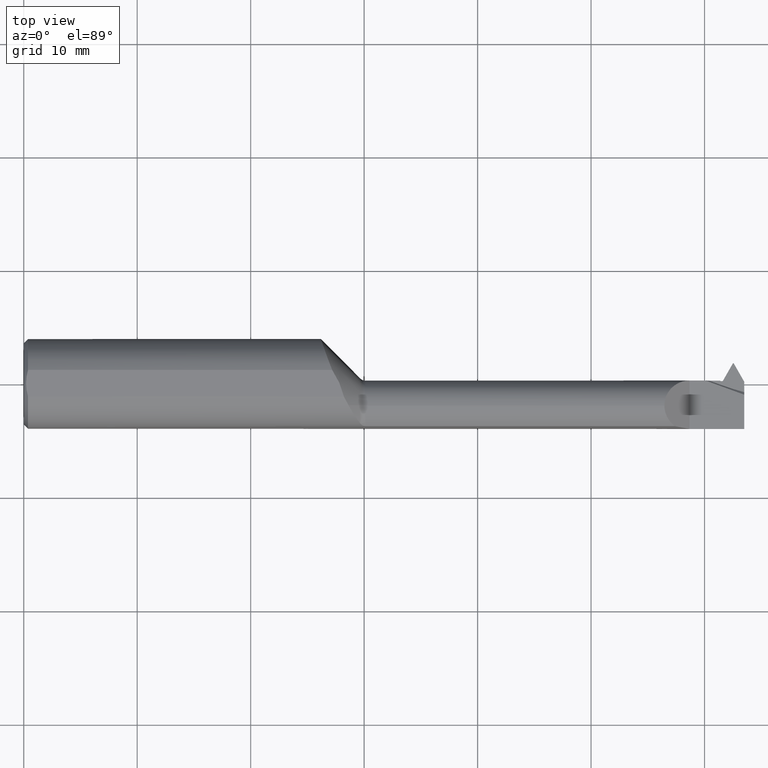
[diagram: clean part render]
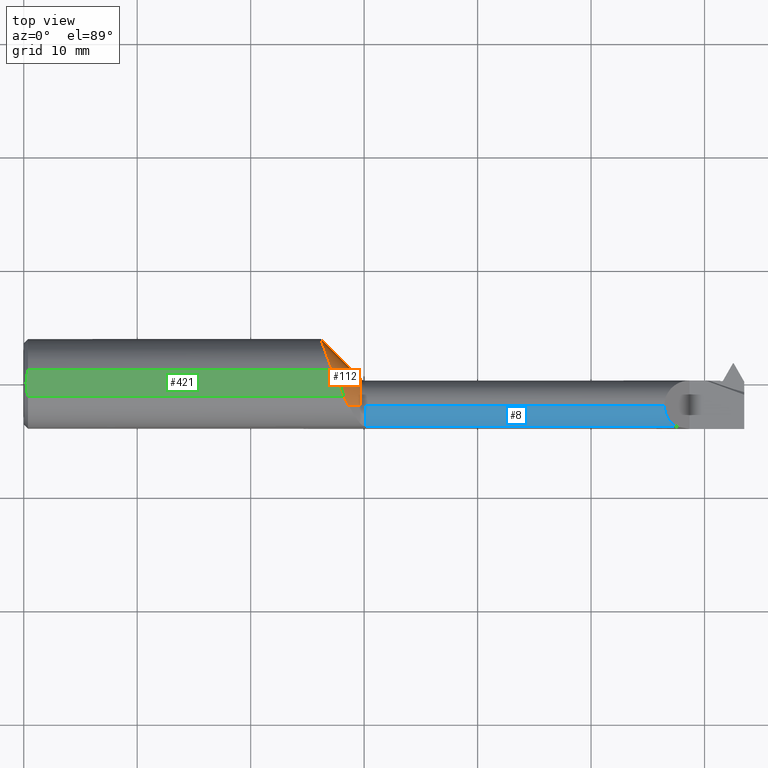
[diagram: same view with three faces highlighted in distinct colors, each labeled with its STEP entity id]
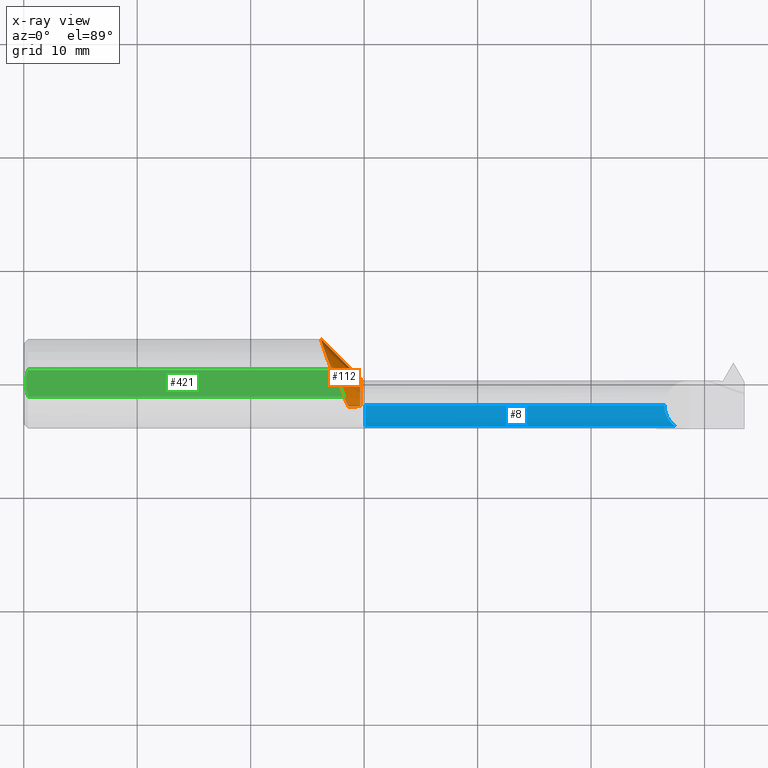
[diagram: x-ray of the same camera — body ghosted, the three highlighted faces saturated]
A machine part, top view with three faces highlighted in distinct colors.
The next image is the same camera in x-ray (body ghosted, the three faces saturated) — at least one of them is partly hidden behind the body in this view.
Their STEP definitions:

[orange] entity #112 — the highlighted conical surface has half-angle 45 deg.
#5 = CARTESIAN_POINT ( 'NONE',  ( 1.044222012668610589, 0.1163179709796762773, -0.1042486718442272170 ) ) ;
#27 = VECTOR ( 'NONE', #312, 39.37007874015748143 ) ;
#68 = ORIENTED_EDGE ( 'NONE', *, *, #353, .T. ) ;
#71 = CARTESIAN_POINT ( 'NONE',  ( 1.031141773156916353, 0.1550540061005035442, 0.02129797022049672445 ) ) ;
#76 = CARTESIAN_POINT ( 'NONE',  ( 1.116812169148769129, -0.05789496149929983237, -0.1453281471598949215 ) ) ;
#88 = CARTESIAN_POINT ( 'NONE',  ( 1.043525812468697689, 0.1182995851173736374, 0.1024596034648371373 ) ) ;
#112 = ADVANCED_FACE ( 'NONE', ( #621 ), #772, .T. ) ;
#124 = CARTESIAN_POINT ( 'NONE',  ( 1.126706199700792999, -0.07609999999999983444, 0.1362938002992066244 ) ) ;
#144 = EDGE_CURVE ( 'NONE', #180, #694, #423, .T. ) ;
#147 = EDGE_CURVE ( 'NONE', #806, #1041, #175, .T. ) ;
#148 = CARTESIAN_POINT ( 'NONE',  ( 1.046899741308043419, 0.1086669464458838996, -0.1122013845914639069 ) ) ;
#152 = CARTESIAN_POINT ( 'NONE',  ( 1.048311627111805588, 0.1046679885198928961, -0.1159372447474035089 ) ) ;
#154 = EDGE_CURVE ( 'NONE', #694, #806, #573, .T. ) ;
#158 = CARTESIAN_POINT ( 'NONE',  ( 1.067010607088304086, 0.05412176561188290769, -0.1467967206887914600 ) ) ;
#163 = CARTESIAN_POINT ( 'NONE',  ( 1.070144386278151671, 0.04622120725381387990, 0.1490999999999999270 ) ) ;
#169 = CARTESIAN_POINT ( 'NONE',  ( 1.075032927891207191, 0.03388377653998491529, -0.1527427000066419183 ) ) ;
#175 = B_SPLINE_CURVE_WITH_KNOTS ( 'NONE', 3,
 ( #556, #880, #76, #964, #656, #886, #901, #403, #169, #158, #565, #979, #975, #152, #148, #5, #322, #485, #650, #480, #475, #244, #800, #646, #71, #891, #570, #250, #396, #88, #496, #414, #812, #897, #735, #163 ),
 .UNSPECIFIED., .F., .F.,
 ( 4, 2, 2, 2, 2, 2, 2, 2, 2, 2, 2, 2, 2, 2, 2, 2, 2, 4 ),
 ( 0.003110930994557954254, 0.003973681353903177338, 0.004836431713248399988, 0.005699182072593623506, 0.006561932431938847024, 0.007424682791284069674, 0.008287433150629292325, 0.008718808330301903650, 0.009150183509974514975, 0.01001293386931973936, 0.01087568422866496201, 0.01173843458801018640, 0.01260118494735540905, 0.01346393530670063343, 0.01432668566604585955, 0.01518943602539108220, 0.01605218638473630832, 0.01691493674408153097 ),
 .UNSPECIFIED. ) ;
#180 = VERTEX_POINT ( 'NONE', #958 ) ;
#204 = DIRECTION ( 'NONE',  ( -1.000000000000000000, -0.000000000000000000, -0.000000000000000000 ) ) ;
#209 = CARTESIAN_POINT ( 'NONE',  ( 1.087561623634159869, 0.01734754105979975300, 0.1490999999999999825 ) ) ;
#244 = CARTESIAN_POINT ( 'NONE',  ( 1.031280914347883382, 0.1546295128890213255, -0.02417333993364567668 ) ) ;
#246 = AXIS2_PLACEMENT_3D ( 'NONE', #370, #204, #532 ) ;
#250 = CARTESIAN_POINT ( 'NONE',  ( 1.036986910343659973, 0.1374578401896124347, 0.07482343719080121469 ) ) ;
#281 = CARTESIAN_POINT ( 'NONE',  ( 1.070144386278151671, 0.04622120725381387990, 0.1490999999999999270 ) ) ;
#312 = DIRECTION ( 'NONE',  ( -0.7071067811865513475, 0.000000000000000000, 0.7071067811865436870 ) ) ;
#322 = CARTESIAN_POINT ( 'NONE',  ( 1.042948678226318426, 0.1199920007254393767, -0.1000013436810296003 ) ) ;
#328 = B_SPLINE_CURVE_WITH_KNOTS ( 'NONE', 3,
 ( #281, #549, #209, #859, #604, #613 ),
 .UNSPECIFIED., .F., .F.,
 ( 4, 2, 4 ),
 ( 0.004248111403087404328, 0.005539588731471046731, 0.006831066059854689135 ),
 .UNSPECIFIED. ) ;
#353 = EDGE_CURVE ( 'NONE', #1041, #948, #328, .T. ) ;
#365 = ORIENTED_EDGE ( 'NONE', *, *, #147, .T. ) ;
#370 = CARTESIAN_POINT ( 'NONE',  ( 0.9749999999999982014, -0.07609999999999980669, 0.000000000000000000 ) ) ;
#384 = CARTESIAN_POINT ( 'NONE',  ( 1.110935696970098752, -0.04622120725381386602, 0.1490999999999999270 ) ) ;
#386 = VECTOR ( 'NONE', #725, 39.37007874015748143 ) ;
#390 = LINE ( 'NONE', #395, #27 ) ;
#392 = ORIENTED_EDGE ( 'NONE', *, *, #144, .T. ) ;
#395 = CARTESIAN_POINT ( 'NONE',  ( 0.9749999999999982014, -0.07609999999999980669, 0.2879999999999998117 ) ) ;
#396 = CARTESIAN_POINT ( 'NONE',  ( 1.038920538248711889, 0.1317206507298689933, 0.08451291234133555264 ) ) ;
#403 = CARTESIAN_POINT ( 'NONE',  ( 1.079319089451871383, 0.02339435974748556302, -0.1546919824194771531 ) ) ;
#406 = VERTEX_POINT ( 'NONE', #124 ) ;
#409 = CARTESIAN_POINT ( 'NONE',  ( 1.167677669529663786, -0.07609999999999980669, 0.000000000000000000 ) ) ;
#414 = CARTESIAN_POINT ( 'NONE',  ( 1.052027254221677977, 0.09423401906602368872, 0.1249299457553747078 ) ) ;
#423 = CIRCLE ( 'NONE', #827, 0.09532233047033626672 ) ;
#475 = CARTESIAN_POINT ( 'NONE',  ( 1.032957570238010936, 0.1495426852631769332, -0.04616949105331325659 ) ) ;
#480 = CARTESIAN_POINT ( 'NONE',  ( 1.034215880784539188, 0.1457367839870741533, -0.05704242602552626884 ) ) ;
#485 = CARTESIAN_POINT ( 'NONE',  ( 1.039422301135399795, 0.1302433680280002948, -0.08676653150347680976 ) ) ;
#496 = CARTESIAN_POINT ( 'NONE',  ( 1.046141080797369893, 0.1107799545225837540, 0.1105230445280569046 ) ) ;
#532 = DIRECTION ( 'NONE',  ( 0.000000000000000000, 0.000000000000000000, 1.000000000000000000 ) ) ;
#535 = B_SPLINE_CURVE_WITH_KNOTS ( 'NONE', 3,
 ( #384, #697, #706, #939 ),
 .UNSPECIFIED., .F., .F.,
 ( 4, 4 ),
 ( 7.382152500728708037E-07, 0.0009159196454856746326 ),
 .UNSPECIFIED. ) ;
#549 = CARTESIAN_POINT ( 'NONE',  ( 1.079182527830745864, 0.03197137784840499430, 0.1490999999999999270 ) ) ;
#556 = CARTESIAN_POINT ( 'NONE',  ( 1.126706199700792999, -0.07609999999999983444, -0.1362938002992066244 ) ) ;
#565 = CARTESIAN_POINT ( 'NONE',  ( 1.063225605245128325, 0.06398529392825012818, -0.1427964609321573097 ) ) ;
#570 = CARTESIAN_POINT ( 'NONE',  ( 1.033879873719948383, 0.1467490068820049287, 0.05438688777438995675 ) ) ;
#573 = LINE ( 'NONE', #718, #386 ) ;
#604 = CARTESIAN_POINT ( 'NONE',  ( 1.107679123362856899, -0.02964729143139360062, 0.1490999999999999548 ) ) ;
#607 = CARTESIAN_POINT ( 'NONE',  ( 1.126706199700792999, -0.07609999999999983444, -0.1362938002992066244 ) ) ;
#613 = CARTESIAN_POINT ( 'NONE',  ( 1.110935696970098752, -0.04622120725381386602, 0.1490999999999999270 ) ) ;
#621 = FACE_OUTER_BOUND ( 'NONE', #883, .T. ) ;
#623 = EDGE_CURVE ( 'NONE', #180, #406, #390, .T. ) ;
#646 = CARTESIAN_POINT ( 'NONE',  ( 1.030767765083627108, 0.1561983557981439230, 0.01003359400291350782 ) ) ;
#650 = CARTESIAN_POINT ( 'NONE',  ( 1.037449876678831817, 0.1360829398674952839, -0.07729477376118278065 ) ) ;
#656 = CARTESIAN_POINT ( 'NONE',  ( 1.102112346281005850, -0.02822334644814733506, -0.1538709203994119146 ) ) ;
#694 = VERTEX_POINT ( 'NONE', #760 ) ;
#697 = CARTESIAN_POINT ( 'NONE',  ( 1.116189882256011900, -0.05672020887657770738, 0.1458452949029919177 ) ) ;
#706 = CARTESIAN_POINT ( 'NONE',  ( 1.121442227582330142, -0.06667231583844440701, 0.1415577724176694530 ) ) ;
#709 = ORIENTED_EDGE ( 'NONE', *, *, #623, .F. ) ;
#718 = CARTESIAN_POINT ( 'NONE',  ( 0.9749999999999982014, -0.07609999999999976505, -0.2879999999999998117 ) ) ;
#725 = DIRECTION ( 'NONE',  ( -0.7071067811865513475, 8.659560562354886020E-17, -0.7071067811865436870 ) ) ;
#735 = CARTESIAN_POINT ( 'NONE',  ( 1.066100644809369502, 0.05646901596201937129, 0.1459231650556712112 ) ) ;
#749 = CARTESIAN_POINT ( 'NONE',  ( 1.070144386278151671, 0.04622120725381387990, 0.1490999999999999270 ) ) ;
#760 = CARTESIAN_POINT ( 'NONE',  ( 1.167677669529663786, -0.07609999999999979281, -0.09532233047033626672 ) ) ;
#772 = CONICAL_SURFACE ( 'NONE', #246, 0.2879999999999998117, 0.7853981633974428389 ) ;
#800 = CARTESIAN_POINT ( 'NONE',  ( 1.030836519003266671, 0.1559885724490455983, -0.01289048594769523839 ) ) ;
#806 = VERTEX_POINT ( 'NONE', #607 ) ;
#808 = EDGE_CURVE ( 'NONE', #948, #406, #535, .T. ) ;
#812 = CARTESIAN_POINT ( 'NONE',  ( 1.055320778875576071, 0.08515054058264751036, 0.1312731220610432459 ) ) ;
#816 = DIRECTION ( 'NONE',  ( -1.000000000000000000, -0.000000000000000000, -0.000000000000000000 ) ) ;
#827 = AXIS2_PLACEMENT_3D ( 'NONE', #409, #816, #969 ) ;
#859 = CARTESIAN_POINT ( 'NONE',  ( 1.101797971871411264, -0.01333127449906998559, 0.1490999999999999270 ) ) ;
#866 = ORIENTED_EDGE ( 'NONE', *, *, #808, .T. ) ;
#880 = CARTESIAN_POINT ( 'NONE',  ( 1.121742310192378023, -0.06720975866797372633, -0.1412576898076212673 ) ) ;
#883 = EDGE_LOOP ( 'NONE', ( #392, #918, #365, #68, #866, #709 ) ) ;
#886 = CARTESIAN_POINT ( 'NONE',  ( 1.092729287374496483, -0.007807587848976660187, -0.1562429486449703198 ) ) ;
#891 = CARTESIAN_POINT ( 'NONE',  ( 1.032687899053012393, 0.1503590421569866442, 0.04344544607852120210 ) ) ;
#897 = CARTESIAN_POINT ( 'NONE',  ( 1.062342633379365076, 0.06631164368567278589, 0.1417251320298380246 ) ) ;
#901 = CARTESIAN_POINT ( 'NONE',  ( 1.088181447201821417, 0.002519520737367399264, -0.1564306795616403067 ) ) ;
#918 = ORIENTED_EDGE ( 'NONE', *, *, #154, .T. ) ;
#939 = CARTESIAN_POINT ( 'NONE',  ( 1.126706199700792999, -0.07609999999999983444, 0.1362938002992066244 ) ) ;
#948 = VERTEX_POINT ( 'NONE', #961 ) ;
#958 = CARTESIAN_POINT ( 'NONE',  ( 1.167677669529663786, -0.07609999999999980669, 0.09532233047033626672 ) ) ;
#961 = CARTESIAN_POINT ( 'NONE',  ( 1.110935696970098752, -0.04622120725381386602, 0.1490999999999999270 ) ) ;
#964 = CARTESIAN_POINT ( 'NONE',  ( 1.106998906861133225, -0.03841099848002871298, -0.1516466027304954611 ) ) ;
#969 = DIRECTION ( 'NONE',  ( 0.000000000000000000, 0.000000000000000000, 1.000000000000000000 ) ) ;
#975 = CARTESIAN_POINT ( 'NONE',  ( 1.052771044772178533, 0.09217447577905521494, -0.1264498563721426772 ) ) ;
#979 = CARTESIAN_POINT ( 'NONE',  ( 1.056062627151268973, 0.08312634177226699284, -0.1325705789283351532 ) ) ;
#1041 = VERTEX_POINT ( 'NONE', #749 ) ;

[blue] entity #8 — the highlighted cylindrical surface (edge-blend (fillet) strip) has radius 2.2352 mm, axis along (-1, -0, -0).
#6 = ORIENTED_EDGE ( 'NONE', *, *, #248, .T. ) ;
#8 = ADVANCED_FACE ( 'NONE', ( #875 ), #951, .T. ) ;
#15 = DIRECTION ( 'NONE',  ( 1.000000000000000000, 0.000000000000000000, 0.000000000000000000 ) ) ;
#17 = ORIENTED_EDGE ( 'NONE', *, *, #887, .T. ) ;
#32 = CARTESIAN_POINT ( 'NONE',  ( 1.175000000000000266, -0.07609999999999980669, 0.08799999999999999489 ) ) ;
#129 = CARTESIAN_POINT ( 'NONE',  ( 2.259141905890882374, -0.1472695137976348656, 0.05175809410911717812 ) ) ;
#135 = DIRECTION ( 'NONE',  ( 0.000000000000000000, 0.000000000000000000, 1.000000000000000000 ) ) ;
#142 = CARTESIAN_POINT ( 'NONE',  ( 1.175000000000000266, -0.07609999999999980669, 0.000000000000000000 ) ) ;
#176 = EDGE_LOOP ( 'NONE', ( #17, #6, #996, #316 ) ) ;
#177 = AXIS2_PLACEMENT_3D ( 'NONE', #957, #227, #559 ) ;
#186 = VERTEX_POINT ( 'NONE', #920 ) ;
#188 = CARTESIAN_POINT ( 'NONE',  ( 1.799000000000000155, -0.1472695137976348101, 0.05175809410911725444 ) ) ;
#227 = DIRECTION ( 'NONE',  ( 1.000000000000000000, 0.000000000000000000, 0.000000000000000000 ) ) ;
#248 = EDGE_CURVE ( 'NONE', #469, #186, #425, .T. ) ;
#284 = CARTESIAN_POINT ( 'NONE',  ( 2.222899999999999210, -0.07609999999999980669, 0.08799999999999999489 ) ) ;
#316 = ORIENTED_EDGE ( 'NONE', *, *, #645, .T. ) ;
#425 = LINE ( 'NONE', #32, #436 ) ;
#436 = VECTOR ( 'NONE', #842, 39.37007874015748143 ) ;
#458 = CARTESIAN_POINT ( 'NONE',  ( 2.222899999999999210, -0.1048058126387025196, 0.08800000000000000877 ) ) ;
#469 = VERTEX_POINT ( 'NONE', #284 ) ;
#473 = CARTESIAN_POINT ( 'NONE',  ( 1.185355339059327440, -0.1472695137976348101, 0.05175809410911725444 ) ) ;
#517 = EDGE_CURVE ( 'NONE', #186, #1026, #638, .T. ) ;
#559 = DIRECTION ( 'NONE',  ( 0.000000000000000000, 0.000000000000000000, 1.000000000000000000 ) ) ;
#566 = VERTEX_POINT ( 'NONE', #1039 ) ;
#583 = LINE ( 'NONE', #188, #596 ) ;
#596 = VECTOR ( 'NONE', #15, 39.37007874015748143 ) ;
#616 = DIRECTION ( 'NONE',  ( -1.000000000000000000, -0.000000000000000000, -0.000000000000000000 ) ) ;
#636 = AXIS2_PLACEMENT_3D ( 'NONE', #142, #616, #135 ) ;
#638 = CIRCLE ( 'NONE', #177, 0.08799999999999999489 ) ;
#645 = EDGE_CURVE ( 'NONE', #1026, #566, #583, .T. ) ;
#780 = CARTESIAN_POINT ( 'NONE',  ( 2.222899999999999210, -0.07609999999999980669, 0.08799999999999999489 ) ) ;
#786 = CARTESIAN_POINT ( 'NONE',  ( 2.235926238519717835, -0.1303858984336273841, 0.07497376148028173093 ) ) ;
#842 = DIRECTION ( 'NONE',  ( -1.000000000000000000, -0.000000000000000000, -0.000000000000000000 ) ) ;
#848 =( BOUNDED_CURVE ( )  B_SPLINE_CURVE ( 3, ( #129, #786, #458, #780 ),
 .UNSPECIFIED., .F., .F. ) 
 B_SPLINE_CURVE_WITH_KNOTS ( ( 4, 4 ),
 ( 5.341171000978993888, 6.283185307179586232 ),
 .UNSPECIFIED. ) 
 CURVE ( )  GEOMETRIC_REPRESENTATION_ITEM ( )  RATIONAL_B_SPLINE_CURVE ( ( 1.000000000000000000, 0.9274078068410984699, 0.9274078068410984699, 1.000000000000000000 ) ) 
 REPRESENTATION_ITEM ( '' )  );
#875 = FACE_OUTER_BOUND ( 'NONE', #176, .T. ) ;
#887 = EDGE_CURVE ( 'NONE', #566, #469, #848, .T. ) ;
#920 = CARTESIAN_POINT ( 'NONE',  ( 1.185355339059327440, -0.07609999999999980669, 0.08799999999999999489 ) ) ;
#951 = CYLINDRICAL_SURFACE ( 'NONE', #636, 0.08799999999999999489 ) ;
#957 = CARTESIAN_POINT ( 'NONE',  ( 1.185355339059327440, -0.07609999999999980669, 0.000000000000000000 ) ) ;
#996 = ORIENTED_EDGE ( 'NONE', *, *, #517, .T. ) ;
#1026 = VERTEX_POINT ( 'NONE', #473 ) ;
#1039 = CARTESIAN_POINT ( 'NONE',  ( 2.259141905890882374, -0.1472695137976348656, 0.05175809410911717812 ) ) ;

[green] entity #421 — the highlighted planar face has unit normal (-0, 0, -1).
#22 = CARTESIAN_POINT ( 'NONE',  ( 0.01499999999999970281, 0.04622120725381385214, 0.1490999999999999270 ) ) ;
#25 = CARTESIAN_POINT ( 'NONE',  ( 0.01100253626952282099, -0.03102299601567365742, 0.1490999999999999270 ) ) ;
#57 = DIRECTION ( 'NONE',  ( -0.000000000000000000, 0.000000000000000000, -1.000000000000000000 ) ) ;
#62 = CARTESIAN_POINT ( 'NONE',  ( 0.01499999999999393485, -0.04622120725382292822, 0.1490999999999999270 ) ) ;
#111 = EDGE_LOOP ( 'NONE', ( #791, #986, #571, #277, #259 ) ) ;
#114 = CARTESIAN_POINT ( 'NONE',  ( 0.007999999999999594241, 0.007838945166257060143, 0.1490999999999999548 ) ) ;
#199 = EDGE_CURVE ( 'NONE', #948, #595, #747, .T. ) ;
#209 = CARTESIAN_POINT ( 'NONE',  ( 1.087561623634159869, 0.01734754105979975300, 0.1490999999999999825 ) ) ;
#259 = ORIENTED_EDGE ( 'NONE', *, *, #199, .F. ) ;
#265 = VERTEX_POINT ( 'NONE', #22 ) ;
#277 = ORIENTED_EDGE ( 'NONE', *, *, #783, .T. ) ;
#278 = EDGE_CURVE ( 'NONE', #265, #443, #582, .T. ) ;
#281 = CARTESIAN_POINT ( 'NONE',  ( 1.070144386278151671, 0.04622120725381387990, 0.1490999999999999270 ) ) ;
#288 = LINE ( 'NONE', #529, #453 ) ;
#328 = B_SPLINE_CURVE_WITH_KNOTS ( 'NONE', 3,
 ( #281, #549, #209, #859, #604, #613 ),
 .UNSPECIFIED., .F., .F.,
 ( 4, 2, 4 ),
 ( 0.004248111403087404328, 0.005539588731471046731, 0.006831066059854689135 ),
 .UNSPECIFIED. ) ;
#342 = CARTESIAN_POINT ( 'NONE',  ( 0.01278044421364362901, -0.03872523995146039122, 0.1490999999999999548 ) ) ;
#346 = CARTESIAN_POINT ( 'NONE',  ( 2.500000000000000000, -0.04622120725381385214, 0.1490999999999999270 ) ) ;
#352 = CARTESIAN_POINT ( 'NONE',  ( 0.01499999999999970281, 0.04622120725381385214, 0.1490999999999999270 ) ) ;
#353 = EDGE_CURVE ( 'NONE', #1041, #948, #328, .T. ) ;
#376 = EDGE_CURVE ( 'NONE', #265, #1041, #288, .T. ) ;
#421 = ADVANCED_FACE ( 'NONE', ( #702 ), #781, .F. ) ;
#430 = DIRECTION ( 'NONE',  ( -1.000000000000000000, -0.000000000000000000, -0.000000000000000000 ) ) ;
#443 = VERTEX_POINT ( 'NONE', #776 ) ;
#453 = VECTOR ( 'NONE', #868, 39.37007874015748143 ) ;
#506 = CARTESIAN_POINT ( 'NONE',  ( 0.008620033643014982441, -0.01559914152229295407, 0.1490999999999999825 ) ) ;
#529 = CARTESIAN_POINT ( 'NONE',  ( 2.500000000000000000, 0.04622120725381385214, 0.1490999999999999270 ) ) ;
#537 = AXIS2_PLACEMENT_3D ( 'NONE', #609, #57, #1023 ) ;
#549 = CARTESIAN_POINT ( 'NONE',  ( 1.079182527830745864, 0.03197137784840499430, 0.1490999999999999270 ) ) ;
#571 = ORIENTED_EDGE ( 'NONE', *, *, #278, .T. ) ;
#582 = B_SPLINE_CURVE_WITH_KNOTS ( 'NONE', 3,
 ( #352, #589, #761, #751, #114, #985 ),
 .UNSPECIFIED., .F., .F.,
 ( 4, 2, 4 ),
 ( 0.003719673573955643159, 0.004308633116653031933, 0.004897592659350421575 ),
 .UNSPECIFIED. ) ;
#589 = CARTESIAN_POINT ( 'NONE',  ( 0.01278288443379421539, 0.03873348115474868625, 0.1490999999999999270 ) ) ;
#595 = VERTEX_POINT ( 'NONE', #978 ) ;
#604 = CARTESIAN_POINT ( 'NONE',  ( 1.107679123362856899, -0.02964729143139360062, 0.1490999999999999548 ) ) ;
#609 = CARTESIAN_POINT ( 'NONE',  ( 0.000000000000000000, 0.1749999999999999889, 0.1490999999999999270 ) ) ;
#613 = CARTESIAN_POINT ( 'NONE',  ( 1.110935696970098752, -0.04622120725381386602, 0.1490999999999999270 ) ) ;
#664 = CARTESIAN_POINT ( 'NONE',  ( 0.007999999999999585568, -0.007830403603065310900, 0.1490999999999999270 ) ) ;
#702 = FACE_OUTER_BOUND ( 'NONE', #111, .T. ) ;
#722 = VECTOR ( 'NONE', #430, 39.37007874015748143 ) ;
#747 = LINE ( 'NONE', #346, #722 ) ;
#749 = CARTESIAN_POINT ( 'NONE',  ( 1.070144386278151671, 0.04622120725381387990, 0.1490999999999999270 ) ) ;
#750 = CARTESIAN_POINT ( 'NONE',  ( 0.007999999999999252501, 4.455076523320869569E-17, 0.1490999999999999270 ) ) ;
#751 = CARTESIAN_POINT ( 'NONE',  ( 0.008634235838431227744, 0.01573208929399681072, 0.1490999999999999270 ) ) ;
#761 = CARTESIAN_POINT ( 'NONE',  ( 0.01102802999246696621, 0.03114634426099326808, 0.1490999999999999825 ) ) ;
#776 = CARTESIAN_POINT ( 'NONE',  ( 0.007999999999999252501, 4.455076523320869569E-17, 0.1490999999999999270 ) ) ;
#781 = PLANE ( 'NONE',  #537 ) ;
#783 = EDGE_CURVE ( 'NONE', #443, #595, #1025, .T. ) ;
#791 = ORIENTED_EDGE ( 'NONE', *, *, #353, .F. ) ;
#859 = CARTESIAN_POINT ( 'NONE',  ( 1.101797971871411264, -0.01333127449906998559, 0.1490999999999999270 ) ) ;
#868 = DIRECTION ( 'NONE',  ( 1.000000000000000000, 0.000000000000000000, 0.000000000000000000 ) ) ;
#948 = VERTEX_POINT ( 'NONE', #961 ) ;
#961 = CARTESIAN_POINT ( 'NONE',  ( 1.110935696970098752, -0.04622120725381386602, 0.1490999999999999270 ) ) ;
#978 = CARTESIAN_POINT ( 'NONE',  ( 0.01499999999999393485, -0.04622120725382292822, 0.1490999999999999270 ) ) ;
#985 = CARTESIAN_POINT ( 'NONE',  ( 0.007999999999999252501, 4.455076523320869569E-17, 0.1490999999999999270 ) ) ;
#986 = ORIENTED_EDGE ( 'NONE', *, *, #376, .F. ) ;
#1023 = DIRECTION ( 'NONE',  ( -1.000000000000000000, 0.000000000000000000, 0.000000000000000000 ) ) ;
#1025 = B_SPLINE_CURVE_WITH_KNOTS ( 'NONE', 3,
 ( #750, #664, #506, #25, #342, #62 ),
 .UNSPECIFIED., .F., .F.,
 ( 4, 2, 4 ),
 ( 0.004897592659350421575, 0.005485910453056772745, 0.006074228246763124783 ),
 .UNSPECIFIED. ) ;
#1041 = VERTEX_POINT ( 'NONE', #749 ) ;